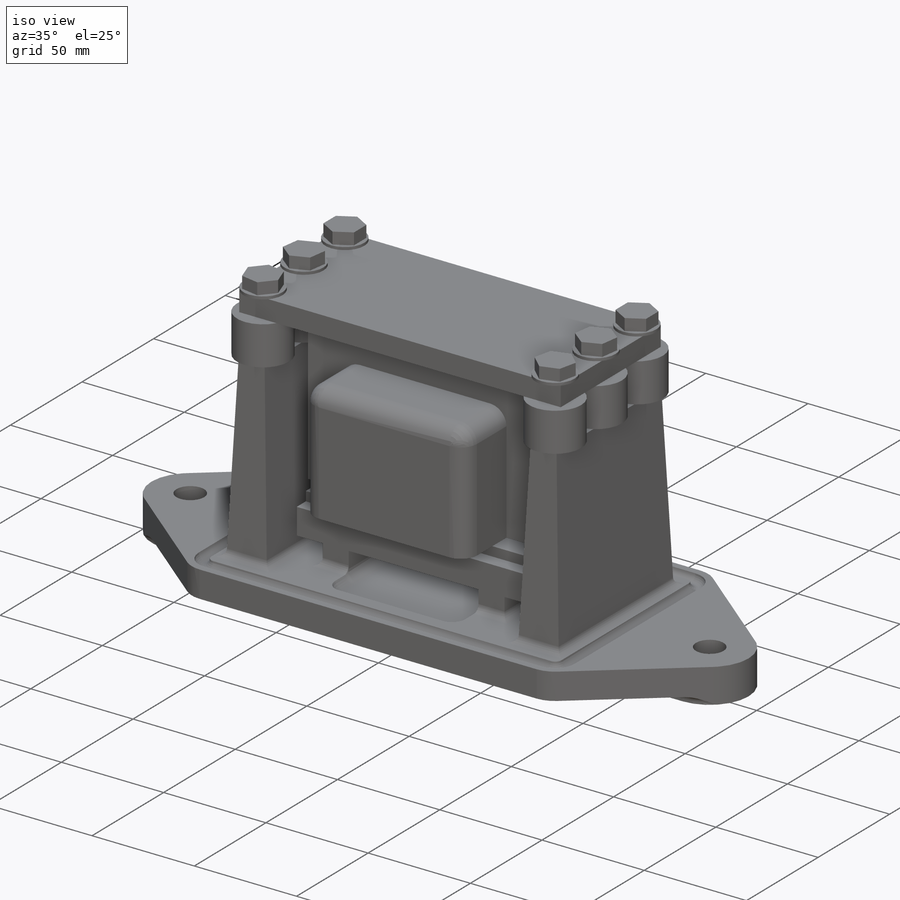
[diagram: iso view]
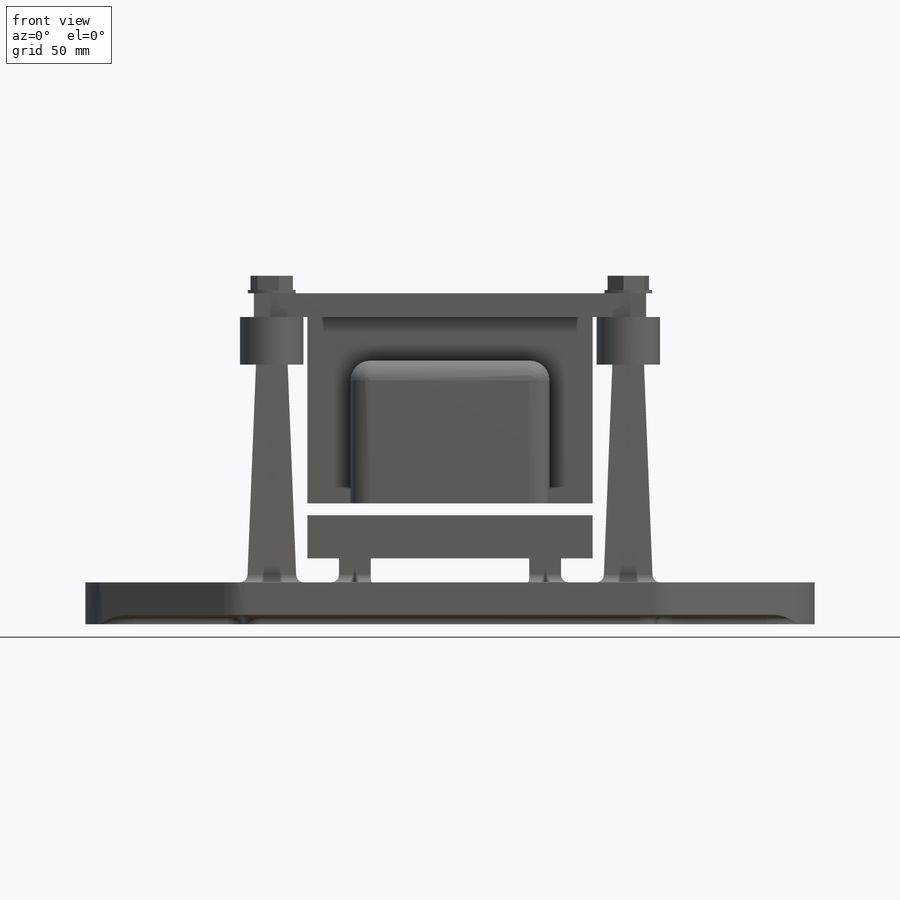
[diagram: front view]
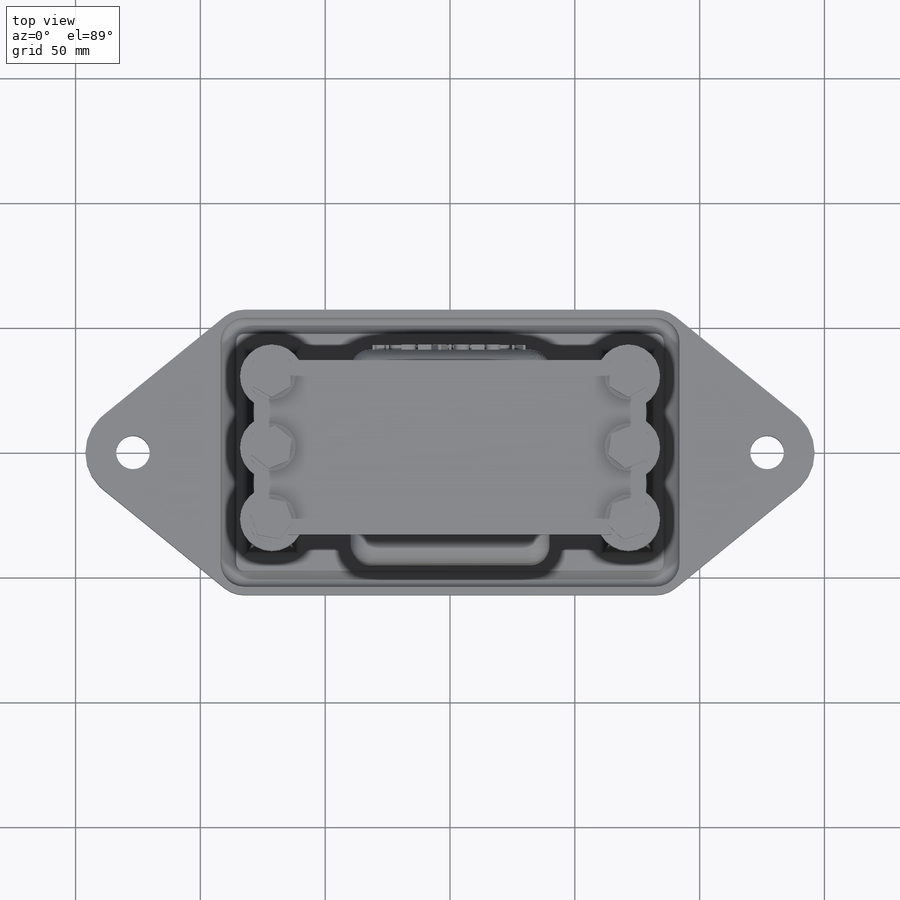
[diagram: top view]
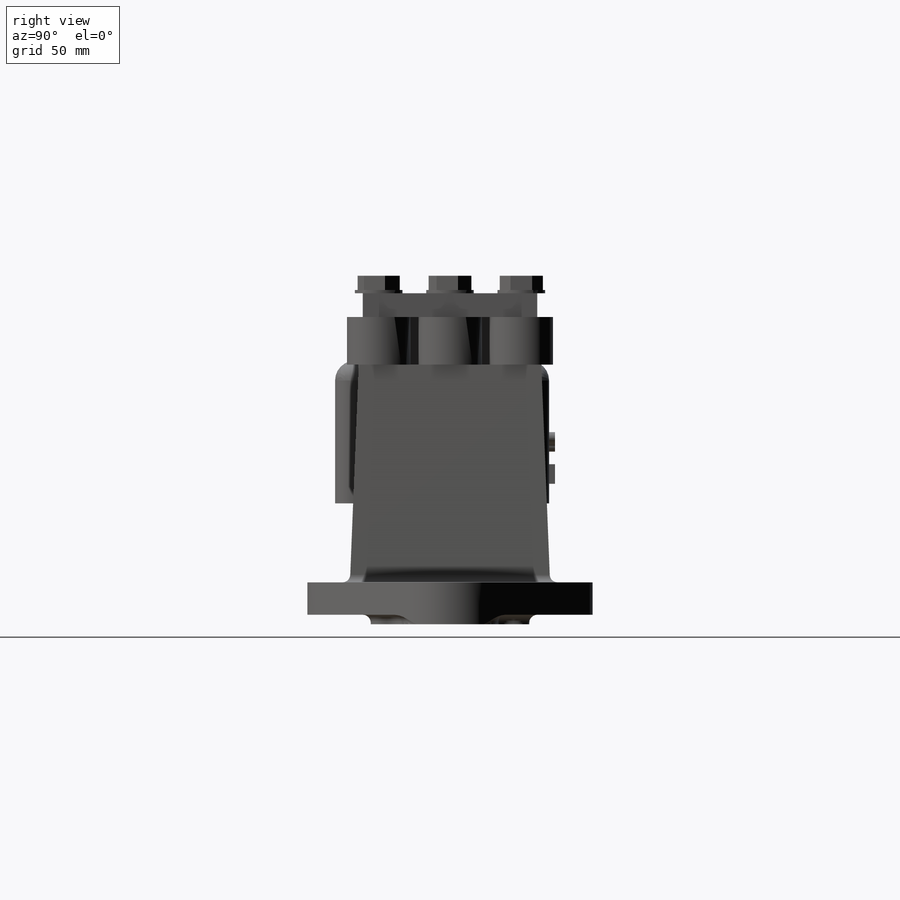
[diagram: right view]
SOLIDWORKS PART (.sldprt)
format: sldprt  version: not decoded by parser v0  size: 1,060,352 bytes
history: native  units: mm
features: sketch x20, extrude x11, fillet x6, hole x3, cut_extrude x2, plane x2, material x1 (+12 scaffold rows collapsed)
feature tree (57):
  scaffold x12  (default folders/planes/origin — collapsed)
  material  "Material <not specified>"
  sketch  "Sketch2"
  sketch  "param"  dims[c1.D2=19.05mm c1.D3=12.7mm c1.D4=12.7mm c1.D1=114.3mm c2.D4=292.1mm c2.D5=~38.310431mm c3.D5=39.1077deg c3.D6=~38.310431mm c4.D6=39.1077deg]
  extrude  "Extrude1"  Depth=12.954mm
  sketch  "Sketch3"  dims[D1=19.05mm D2=254.0mm D3=165.1mm D4=63.5mm]
  extrude  "Extrude2"  Depth=3.81mm
  fillet  "Fillet 1/4"  Radius=6.35mm
  fillet  "Fillet 1/8"  Radius=3.175mm
  sketch  "Sketch6"  dims[D4=3.048mm D5=9.652mm D1=107.696mm D2=183.896mm D3=6.35mm]
  cut_extrude  "Cut-Extrude1"  Depth=3.048mm
  fillet  "Fillet2 1/8"  Radius=3.175mm
  plane  "Plane2"  Offset=9.652mm
  sketch  "Sketch7"  dims[c1.D1=12.7mm c1.D2=41.148mm c1.D3=31.75mm c2.D2=50.8mm]
  extrude  "Extrude3"  [1 undecoded]
  sketch  "Sketch16"  dims[D2=6.35mm D1=82.55mm]
  cut_extrude  "Cut-Extrude2"  Depth=3.048mm
  plane  "Plane3"  Offset=77.597mm
  sketch  "Sketch8"  dims[c1.D1=63.5mm c1.D2=12.7mm c1.D3=44.45mm c2.D1=73.152mm c2.D3=155.448mm]
  extrude  "Extrude4"  [1 undecoded]
  fillet  "Fillet3 1/8"  Radius=3.175mm
  fillet  "Fillet 3/16"  Radius=4.7625mm
  hole  "17/32 (0.53125) Diameter Hole1"  Diameter=13.49502mm Depth=16.99797mm
  sketch  "Sketch11"  dims[D1=127.0mm D2=254.0mm]
  sketch  "Sketch10"  dims[hole-wizard template sketch: 59 standard entries collapsed; hole parameters kept: c18.Thru Hole Dia.=~13.49502mm c18.Thru Hole Depth=~16.99797mm]
  hole  "#10-32 Tapped Hole1"  Diameter=4.0386mm Depth=19.8374mm
  sketch  "Sketch13"  dims[D1=38.1mm D2=38.1mm D3=12.7mm D4=12.7mm]
  sketch  "Sketch12"  dims[hole-wizard template sketch: 28 standard entries collapsed; hole parameters kept: c8.Tap Drill Dia.=4.0386mm c8.Tap Drill Depth=19.8374mm c8.Thread Major Dia.=4.826mm c8.Thread Depth=12.7mm c8.D5=~14.816244mm c8.Drill Angle=118.0deg]
  hole  "1/4-20 Tapped Hole1"  Diameter=5.1054mm Depth=25.4mm
  sketch  "Sketch15"  dims[D1=71.4248mm D2=71.4248mm D3=28.575mm D4=28.575mm]
  sketch  "Sketch14"  dims[hole-wizard template sketch: 29 standard entries collapsed; hole parameters kept: c8.Tap Drill Depth=25.4mm c8.Thread Major Dia.=6.35mm c8.Thread Depth=14.3002mm c8.D5=~14.816244mm c8.Drill Angle=118.0deg]
  sketch  "Sketch17"  dims[c1.D1=25.4mm c1.D2=25.4mm c1.D3=25.4mm c1.D4=25.4mm c1.D5=25.4mm c1.D6=25.4mm c2.D5=~18.416703mm]
  extrude  "Extrude5"  Depth=19.05mm
  sketch  "Sketch18"  dims[D1=69.85mm D2=157.1625mm]
  extrude  "Extrude6"  Depth=9.525mm
  sketch  "Sketch19"  dims[D1=38.1mm D2=50.8mm D3=12.7mm D4=17.272mm D5=35.052mm D6=74.6125mm]
  extrude  "Extrude7"  Depth=57.15mm
  sketch  "Sketch20"  dims[D1=79.756mm D2=57.15mm]
  extrude  "Extrude8"  Depth=46.0375mm
  fillet  "Fillet1"  Radius=7.9375mm
  sketch  "Sketch21"  dims[D1=19.05mm]
  extrude  "Extrude9"  Depth=1.3208mm
  sketch  "Sketch22"  dims[D1=14.986mm]
  extrude  "Extrude10"  Depth=5.715mm
  sketch  "Sketch23"  dims[D1=~15.584456mm]
  extrude  "Extrude11"  Depth=2.38125mm
decode coverage: 39 of 42 modeling features carry decoded parameters
note: ~ marks probable driven/reference dimensions
note: 2 parameter values undecoded
note: suppression state not decoded; provenance and decode notes live in map.json
